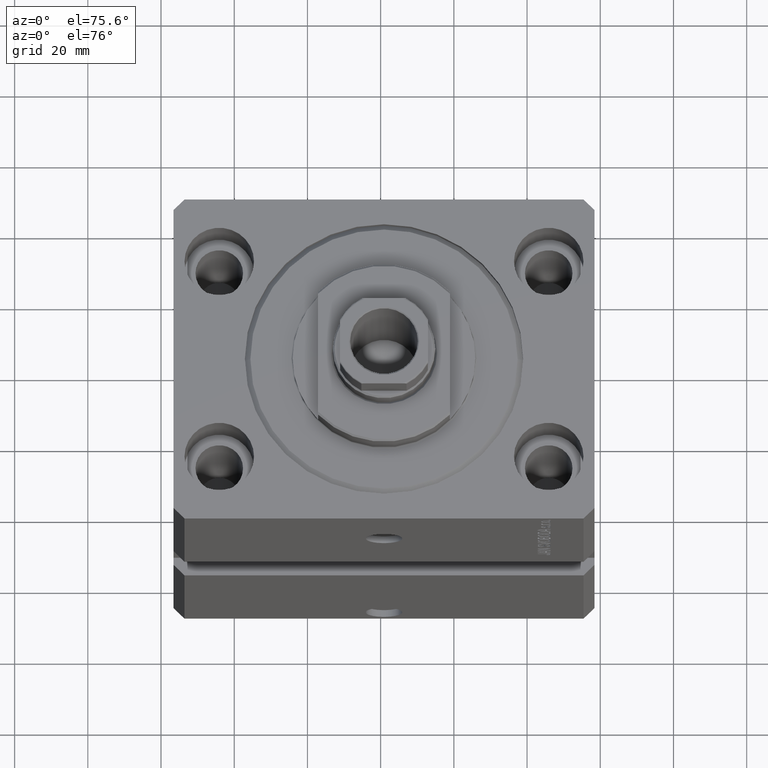
[diagram: clean part render]
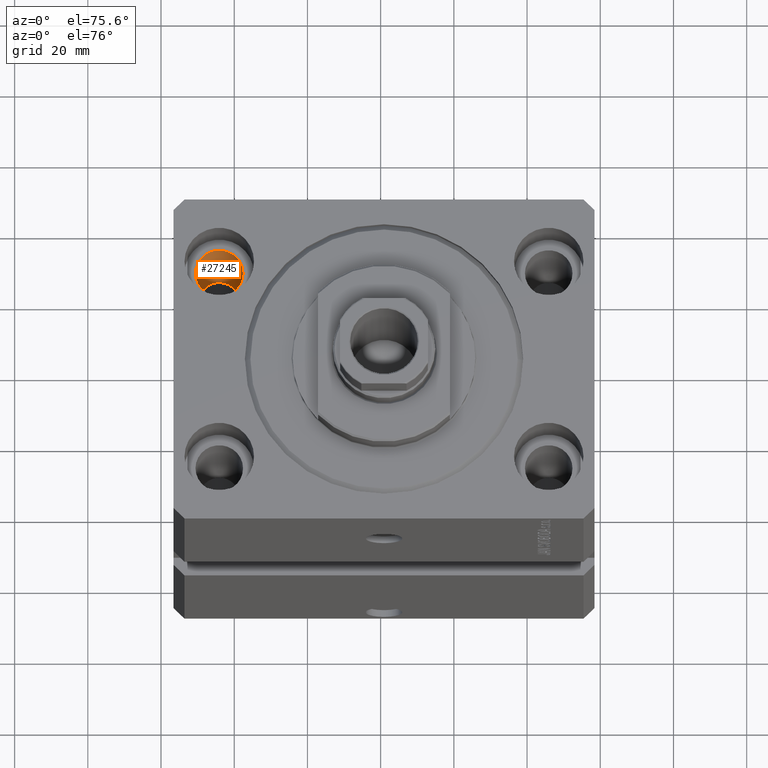
[diagram: same view with one face highlighted and labeled with its STEP entity id]
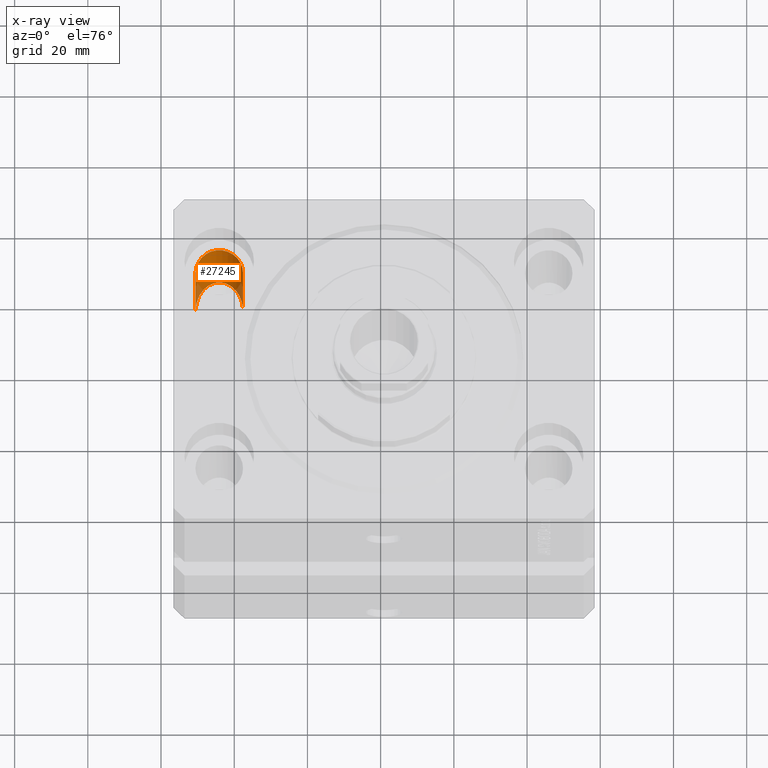
[diagram: x-ray of the same camera — body ghosted, the highlighted face saturated]
A machine part, auxiliary view. The second image highlights one B-rep face of the part: STEP entity #27245.
The next image is the same camera in x-ray: the body ghosted, the highlighted face saturated — about 10% of this face is hidden behind the body in this view.
In plain terms, the highlighted cylindrical surface (edge-blend (fillet) strip) has radius 6.5 mm, axis along (0, 0, 1).
Its self-contained STEP definition (entity closure, byte-faithful):
#2233 = CARTESIAN_POINT ( 'NONE',  ( -38.49999999999999289, 40.50000000000000000, -42.00000000000001421 ) ) ;
#3841 = LINE ( 'NONE', #26245, #24780 ) ;
#6010 = CIRCLE ( 'NONE', #33828, 6.499999999999999112 ) ;
#12185 = CARTESIAN_POINT ( 'NONE',  ( -45.00000000000000000, 27.50000000000000355, -110.0000000000000000 ) ) ;
#13939 = CARTESIAN_POINT ( 'NONE',  ( -51.50000000000000000, 27.50000000000000355, -55.00000000000001421 ) ) ;
#15440 = DIRECTION ( 'NONE',  ( 1.000000000000000000, 0.000000000000000000, 0.000000000000000000 ) ) ;
#16433 = VERTEX_POINT ( 'NONE', #46453 ) ;
#17144 = DIRECTION ( 'NONE',  ( 1.000000000000000000, 0.000000000000000000, 0.000000000000000000 ) ) ;
#17944 = EDGE_CURVE ( 'NONE', #40006, #39919, #6010, .T. ) ;
#20863 = DIRECTION ( 'NONE',  ( 0.000000000000000000, 0.000000000000000000, 1.000000000000000000 ) ) ;
#20935 = DIRECTION ( 'NONE',  ( -0.000000000000000000, -0.000000000000000000, 1.000000000000000000 ) ) ;
#21630 = CARTESIAN_POINT ( 'NONE',  ( -51.50000000000000711, 40.50000000000000000, -42.00000000000001421 ) ) ;
#21938 = VERTEX_POINT ( 'NONE', #42435 ) ;
#22521 = DIRECTION ( 'NONE',  ( -0.000000000000000000, -0.000000000000000000, 1.000000000000000000 ) ) ;
#24423 = CARTESIAN_POINT ( 'NONE',  ( -51.50000000000000000, 27.50000000000000355, -110.0000000000000000 ) ) ;
#24583 = CARTESIAN_POINT ( 'NONE',  ( -45.00000000000000000, 27.50000000000000355, -13.00000000000000000 ) ) ;
#24780 = VECTOR ( 'NONE', #22521, 1000.000000000000000 ) ;
#26245 = CARTESIAN_POINT ( 'NONE',  ( -38.50000000000000000, 27.50000000000000355, -110.0000000000000000 ) ) ;
#27245 = ADVANCED_FACE ( 'NONE', ( #31075 ), #38542, .F. ) ;
#27901 = LINE ( 'NONE', #24423, #46382 ) ;
#28599 = CARTESIAN_POINT ( 'NONE',  ( -38.50000000000000000, 27.50000000000000355, -13.00000000000000000 ) ) ;
#31075 = FACE_OUTER_BOUND ( 'NONE', #45558, .T. ) ;
#32870 = EDGE_CURVE ( 'NONE', #21938, #16433, #32918, .T. ) ;
#32918 =( BOUNDED_CURVE ( )  B_SPLINE_CURVE ( 3, ( #13939, #21630, #2233, #36309 ),
 .UNSPECIFIED., .F., .F. ) 
 B_SPLINE_CURVE_WITH_KNOTS ( ( 4, 4 ),
 ( 4.712388980384689674, 7.853981633974482790 ),
 .UNSPECIFIED. ) 
 CURVE ( )  GEOMETRIC_REPRESENTATION_ITEM ( )  RATIONAL_B_SPLINE_CURVE ( ( 1.000000000000000000, 0.3333333333333333703, 0.3333333333333333703, 1.000000000000000000 ) ) 
 REPRESENTATION_ITEM ( '' )  );
#33828 = AXIS2_PLACEMENT_3D ( 'NONE', #24583, #20863, #17144 ) ;
#34068 = ORIENTED_EDGE ( 'NONE', *, *, #32870, .T. ) ;
#36019 = ORIENTED_EDGE ( 'NONE', *, *, #36141, .T. ) ;
#36141 = EDGE_CURVE ( 'NONE', #16433, #40006, #3841, .T. ) ;
#36309 = CARTESIAN_POINT ( 'NONE',  ( -38.50000000000000000, 27.50000000000000355, -55.00000000000001421 ) ) ;
#37825 = EDGE_CURVE ( 'NONE', #21938, #39919, #27901, .T. ) ;
#38542 = CYLINDRICAL_SURFACE ( 'NONE', #47616, 6.499999999999999112 ) ;
#39919 = VERTEX_POINT ( 'NONE', #46279 ) ;
#40006 = VERTEX_POINT ( 'NONE', #28599 ) ;
#42435 = CARTESIAN_POINT ( 'NONE',  ( -51.50000000000000000, 27.50000000000000355, -55.00000000000001421 ) ) ;
#42733 = ORIENTED_EDGE ( 'NONE', *, *, #37825, .F. ) ;
#44063 = ORIENTED_EDGE ( 'NONE', *, *, #17944, .T. ) ;
#45558 = EDGE_LOOP ( 'NONE', ( #42733, #34068, #36019, #44063 ) ) ;
#46010 = DIRECTION ( 'NONE',  ( -0.000000000000000000, -0.000000000000000000, 1.000000000000000000 ) ) ;
#46279 = CARTESIAN_POINT ( 'NONE',  ( -51.50000000000000000, 27.50000000000000355, -13.00000000000000000 ) ) ;
#46382 = VECTOR ( 'NONE', #20935, 1000.000000000000000 ) ;
#46453 = CARTESIAN_POINT ( 'NONE',  ( -38.50000000000000000, 27.50000000000000355, -55.00000000000001421 ) ) ;
#47616 = AXIS2_PLACEMENT_3D ( 'NONE', #12185, #46010, #15440 ) ;